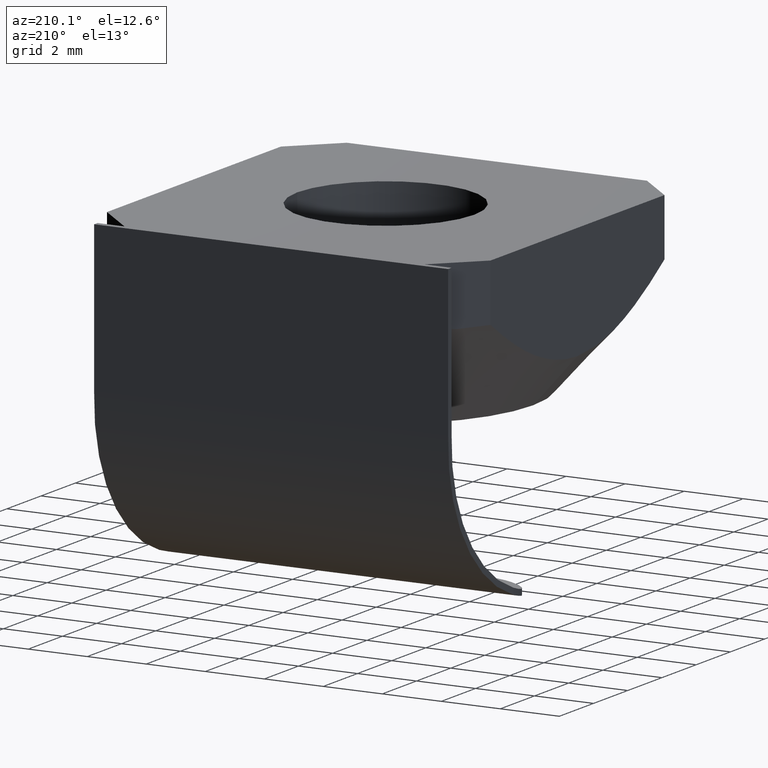
[diagram: clean part render]
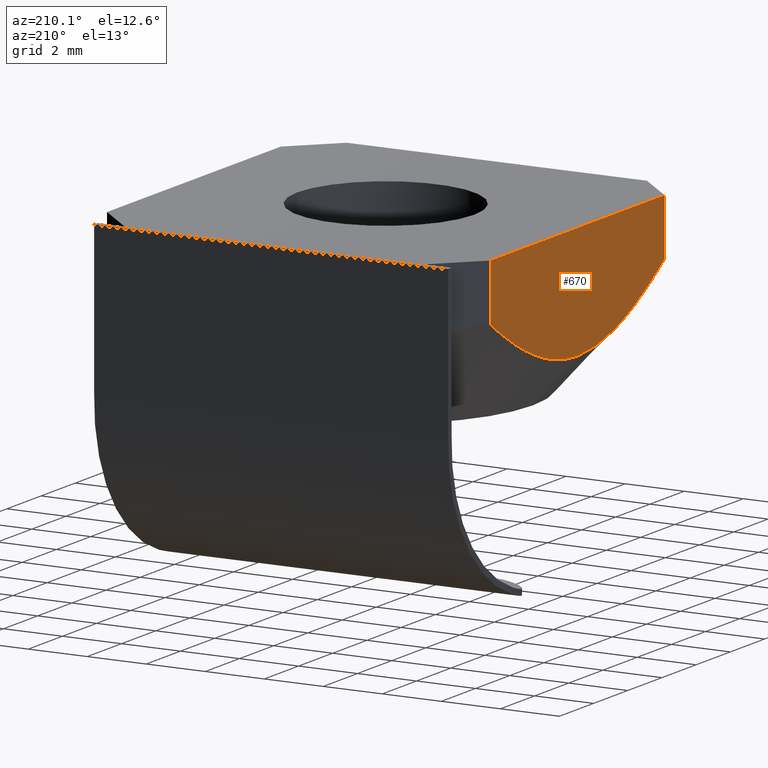
[diagram: same view with one face highlighted and labeled with its STEP entity id]
A machine part, auxiliary view. The second image highlights one B-rep face of the part: STEP entity #670.
In plain terms, the highlighted planar face has unit normal (-1, 0, 0).
Its self-contained STEP definition (entity closure, byte-faithful):
#21 = CARTESIAN_POINT ( 'NONE',  ( -6.499999999966561859, 4.703623633186841069, -2.191522643361974332 ) ) ;
#22 = EDGE_CURVE ( 'NONE', #652, #477, #409, .T. ) ;
#24 = CARTESIAN_POINT ( 'NONE',  ( -6.499999999999999112, 0.9207822176421314175, -3.800343512463973727 ) ) ;
#40 = EDGE_CURVE ( 'NONE', #440, #387, #499, .T. ) ;
#42 = CARTESIAN_POINT ( 'NONE',  ( -6.499999999999996447, -1.815600839914668585, -3.598271834393967250 ) ) ;
#47 = CARTESIAN_POINT ( 'NONE',  ( -6.500000000000000000, -3.516244482561148299, -2.888242014019203996 ) ) ;
#51 = ORIENTED_EDGE ( 'NONE', *, *, #653, .T. ) ;
#77 = LINE ( 'NONE', #515, #503 ) ;
#80 = FACE_OUTER_BOUND ( 'NONE', #273, .T. ) ;
#83 = ORIENTED_EDGE ( 'NONE', *, *, #538, .F. ) ;
#91 = CARTESIAN_POINT ( 'NONE',  ( -6.499999999999999112, 6.591949000000000730E-16, 0.0000000000000000000 ) ) ;
#99 = CARTESIAN_POINT ( 'NONE',  ( -6.500000000000000000, 1.815724347486218138, -3.598234520951652637 ) ) ;
#107 = CARTESIAN_POINT ( 'NONE',  ( -6.499999999999999112, 5.085786437626910406, 0.0000000000000000000 ) ) ;
#150 = DIRECTION ( 'NONE',  ( -0.0000000000000000000, -0.0000000000000000000, -1.000000000000000000 ) ) ;
#159 = VECTOR ( 'NONE', #452, 1000.000000000000000 ) ;
#170 = CARTESIAN_POINT ( 'NONE',  ( -6.499999999999999112, 1.564844549028617558E-15, -3.855463141347041045 ) ) ;
#184 = CARTESIAN_POINT ( 'NONE',  ( -6.499999999999999112, -0.9206392684394899550, -3.800366371403174792 ) ) ;
#208 = VECTOR ( 'NONE', #554, 1000.000000000000000 ) ;
#265 = CARTESIAN_POINT ( 'NONE',  ( -6.500000000000000000, -4.703607954548214565, -2.191533235839579596 ) ) ;
#268 = ORIENTED_EDGE ( 'NONE', *, *, #40, .T. ) ;
#273 = EDGE_LOOP ( 'NONE', ( #83, #942, #51, #268, #865 ) ) ;
#319 = CARTESIAN_POINT ( 'NONE',  ( -6.500000000012470025, 5.085786437677112026, -1.933334202242378286 ) ) ;
#336 = VERTEX_POINT ( 'NONE', #723 ) ;
#357 = EDGE_CURVE ( 'NONE', #336, #387, #77, .T. ) ;
#387 = VERTEX_POINT ( 'NONE', #663 ) ;
#409 = LINE ( 'NONE', #557, #208 ) ;
#417 = B_SPLINE_CURVE_WITH_KNOTS ( 'NONE', 3,
 ( #319, #21, #823, #743, #471, #610, #99, #24, #539, #170 ),
 .UNSPECIFIED., .F., .F.,
 ( 4, 2, 2, 2, 4 ),
 ( 8.321467144627602380E-14, 0.001375070618102952223, 0.002750141236122689761, 0.004125211854142427081, 0.005500282472162164836 ),
 .UNSPECIFIED. ) ;
#440 = VERTEX_POINT ( 'NONE', #461 ) ;
#452 = DIRECTION ( 'NONE',  ( 0.0000000000000000000, -1.000000000000000000, -0.0000000000000000000 ) ) ;
#458 = CARTESIAN_POINT ( 'NONE',  ( -6.500000000012470025, 5.085786437677112026, -1.933334202242378286 ) ) ;
#461 = CARTESIAN_POINT ( 'NONE',  ( -6.499999999999999112, 1.564844549028617558E-15, -3.855463141347041045 ) ) ;
#471 = CARTESIAN_POINT ( 'NONE',  ( -6.500000000000000000, 3.107104337365197644, -3.094856044108543980 ) ) ;
#477 = VERTEX_POINT ( 'NONE', #458 ) ;
#499 = B_SPLINE_CURVE_WITH_KNOTS ( 'NONE', 3,
 ( #909, #631, #184, #42, #762, #621, #47, #838, #265, #699 ),
 .UNSPECIFIED., .F., .F.,
 ( 4, 2, 2, 2, 4 ),
 ( 0.005500282472162164836, 0.006875464021343275639, 0.008250645570524385575, 0.009625827119705495510, 0.01100100866888660718 ),
 .UNSPECIFIED. ) ;
#503 = VECTOR ( 'NONE', #150, 1000.000000000000000 ) ;
#515 = CARTESIAN_POINT ( 'NONE',  ( -6.500000000000000888, -5.085786437626906853, 0.0000000000000000000 ) ) ;
#538 = EDGE_CURVE ( 'NONE', #652, #336, #824, .T. ) ;
#539 = CARTESIAN_POINT ( 'NONE',  ( -6.500000000000000000, 0.4650942893279675916, -3.855463141347040601 ) ) ;
#550 = PLANE ( 'NONE',  #928 ) ;
#554 = DIRECTION ( 'NONE',  ( -0.0000000000000000000, -0.0000000000000000000, -1.000000000000000000 ) ) ;
#557 = CARTESIAN_POINT ( 'NONE',  ( -6.499999999999999112, 5.085786437626910406, 0.0000000000000000000 ) ) ;
#610 = CARTESIAN_POINT ( 'NONE',  ( -6.499999999999999112, 2.258188589613317809, -3.449924592231263798 ) ) ;
#621 = CARTESIAN_POINT ( 'NONE',  ( -6.499999999999999112, -3.107041589988807306, -3.094886115520043113 ) ) ;
#631 = CARTESIAN_POINT ( 'NONE',  ( -6.500000000000000000, -0.4651318099098080694, -3.855463141347041045 ) ) ;
#652 = VERTEX_POINT ( 'NONE', #751 ) ;
#653 = EDGE_CURVE ( 'NONE', #477, #440, #417, .T. ) ;
#663 = CARTESIAN_POINT ( 'NONE',  ( -6.500000000012470913, -5.085786437677108474, -1.933334202242376954 ) ) ;
#670 = ADVANCED_FACE ( 'NONE', ( #80 ), #550, .T. ) ;
#679 = DIRECTION ( 'NONE',  ( -1.000000000000000000, 0.0000000000000000000, 0.0000000000000000000 ) ) ;
#699 = CARTESIAN_POINT ( 'NONE',  ( -6.500000000012470913, -5.085786437677108474, -1.933334202242376954 ) ) ;
#723 = CARTESIAN_POINT ( 'NONE',  ( -6.500000000000000888, -5.085786437626906853, 0.0000000000000000000 ) ) ;
#738 = DIRECTION ( 'NONE',  ( 0.0000000000000000000, 0.0000000000000000000, 1.000000000000000000 ) ) ;
#743 = CARTESIAN_POINT ( 'NONE',  ( -6.499999999999996447, 3.516297865762422870, -2.888213576328815702 ) ) ;
#751 = CARTESIAN_POINT ( 'NONE',  ( -6.499999999999999112, 5.085786437626910406, 0.0000000000000000000 ) ) ;
#762 = CARTESIAN_POINT ( 'NONE',  ( -6.500000000000000000, -2.258115985512184398, -3.449951132485600258 ) ) ;
#823 = CARTESIAN_POINT ( 'NONE',  ( -6.500000000000000888, 4.314590728831701583, -2.436610215365375254 ) ) ;
#824 = LINE ( 'NONE', #91, #159 ) ;
#838 = CARTESIAN_POINT ( 'NONE',  ( -6.499999999999999112, -4.314560849031610523, -2.436628880319039236 ) ) ;
#865 = ORIENTED_EDGE ( 'NONE', *, *, #357, .F. ) ;
#909 = CARTESIAN_POINT ( 'NONE',  ( -6.499999999999999112, 1.564844549028617558E-15, -3.855463141347041045 ) ) ;
#928 = AXIS2_PLACEMENT_3D ( 'NONE', #107, #679, #738 ) ;
#942 = ORIENTED_EDGE ( 'NONE', *, *, #22, .T. ) ;